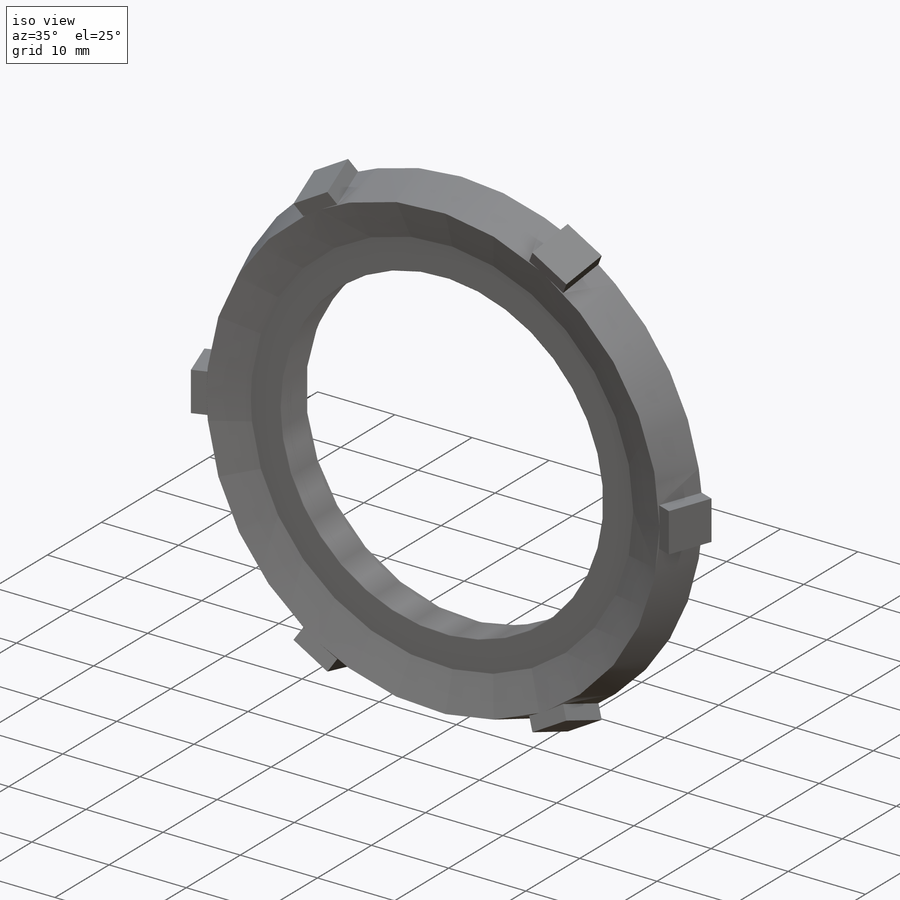
[diagram: iso view]
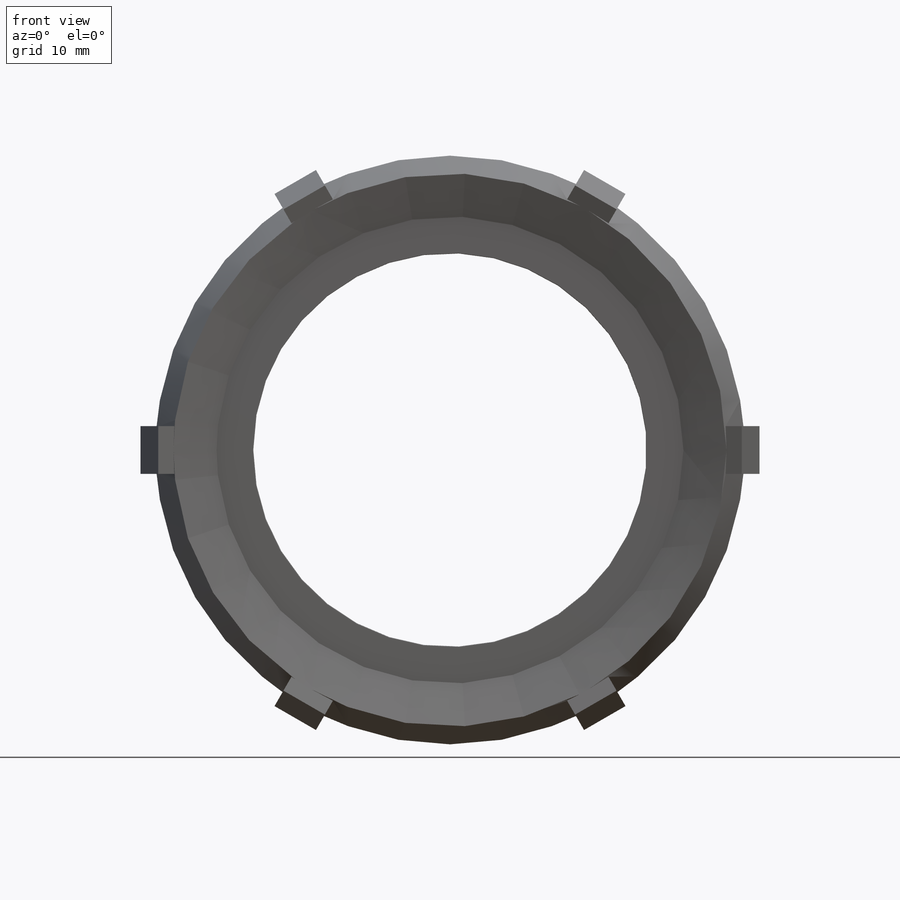
[diagram: front view]
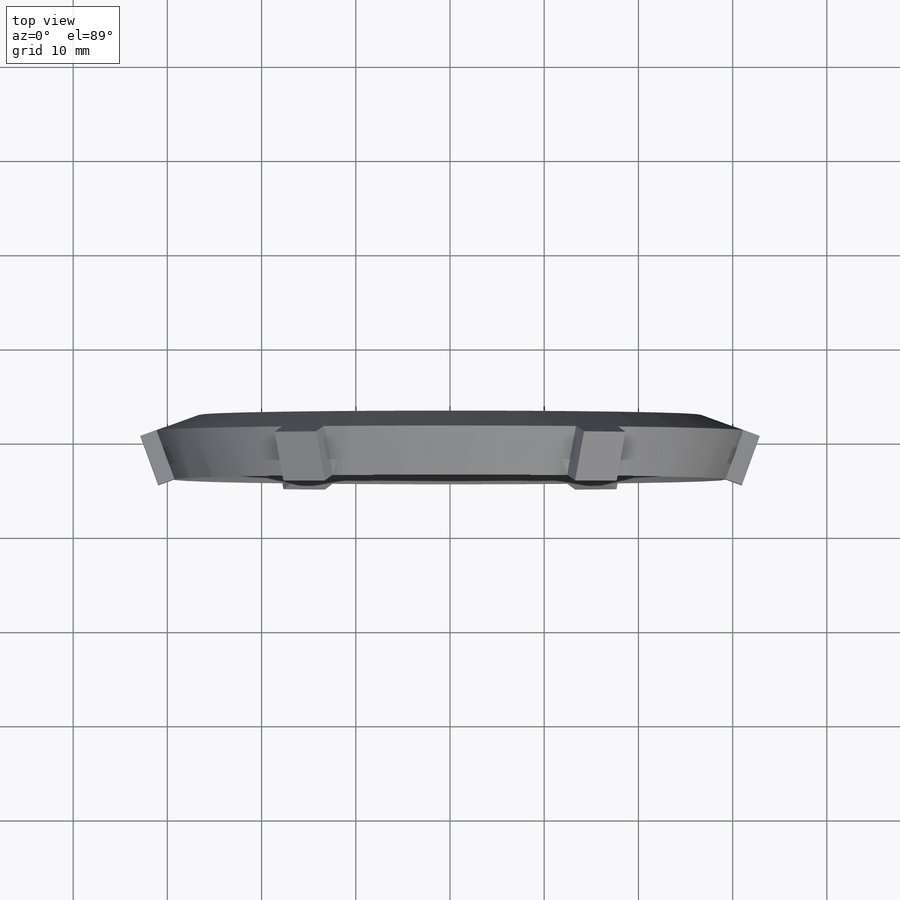
[diagram: top view]
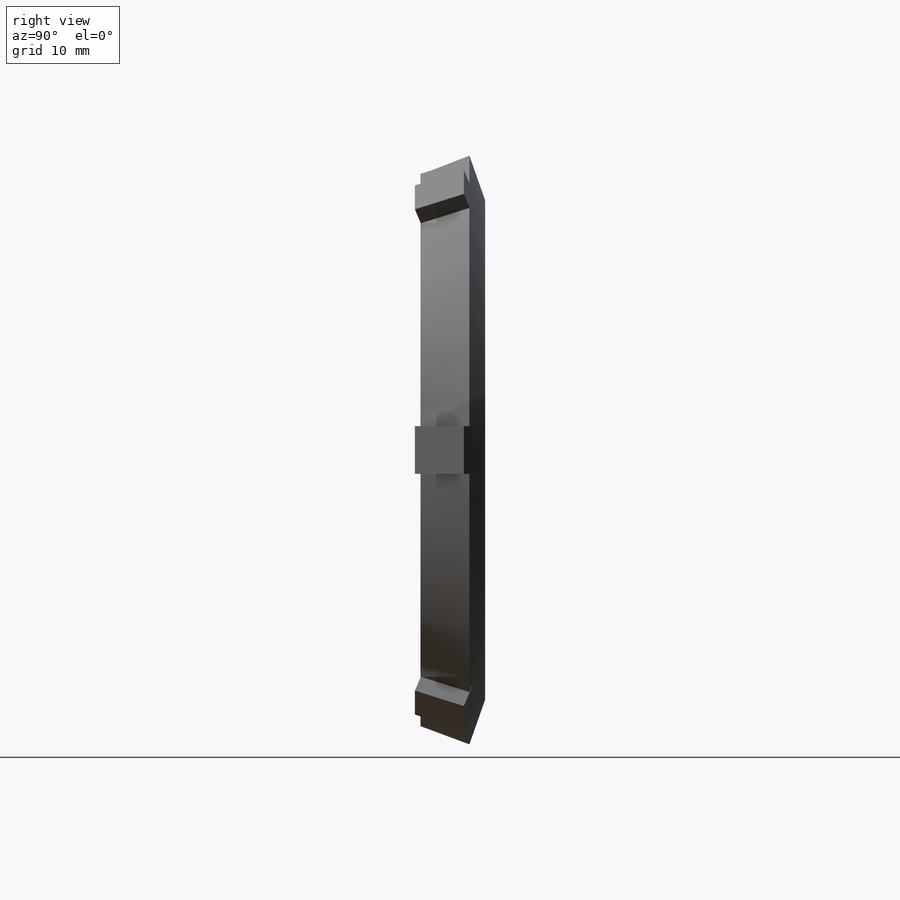
[diagram: right view]
SOLIDWORKS PART (.sldprt)
format: sldprt  version: not decoded by parser v0  size: 276,992 bytes
history: native  units: mm
features: sketch x3, material x1, revolve x1, extrude x1, pattern_circular x1, fillet x1, cut_revolve x1, pattern_linear x1 (+13 scaffold rows collapsed)
feature tree (23):
  scaffold x13  (default folders/planes/origin — collapsed)
  material  "Material <not specified>"
  sketch  "Sketch1"  dims[c1.D1=16.383mm c1.G/2=2.54mm c1.G=5.08mm c1.D4=6.096mm c2.D4=20.0deg c2.D5=~4.583722mm c3.D5=160.0deg c4.D5=4.572mm c4.D6=31.242mm c4.TS=41.656mm c4.D1=6.858mm]
  revolve  "Revolve1"  Angle=360deg
  sketch  "Sketch3"  dims[D1=30.226mm D2=2.794mm]
  extrude  "Extrude3"  Depth=2.54mm
  pattern_circular  "CirPattern1"  Count=6 Angle=360deg
  fillet  "Fillet4"  Radius=0.127mm
  sketch  "Sketch4"  dims[c1.D1=~0.317037mm c2.D1=60.0deg c2.D2=~0.384214mm c3.D2=60.0deg c3.D3=0.762mm]
  cut_revolve  "Cut-Revolve1"  Angle=360deg
  pattern_linear  "LPattern1"  Count1=11 Count2=1 Spacing1=0.4572mm Spacing2=50mm
decode coverage: 9 of 9 modeling features carry decoded parameters
note: ~ marks probable driven/reference dimensions
note: suppression state not decoded; provenance and decode notes live in map.json
